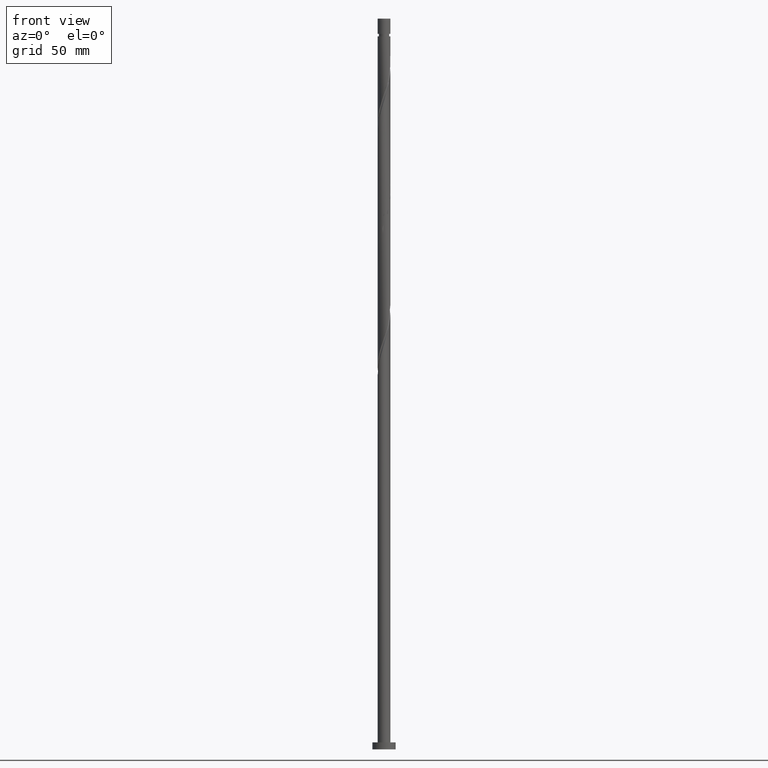
[diagram: clean part render]
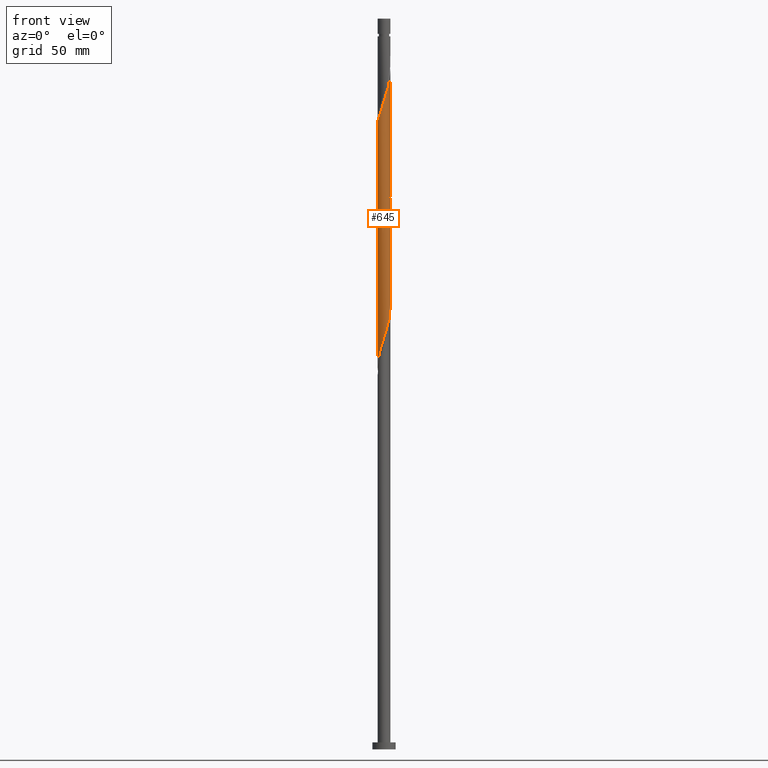
[diagram: same view with one face highlighted and labeled with its STEP entity id]
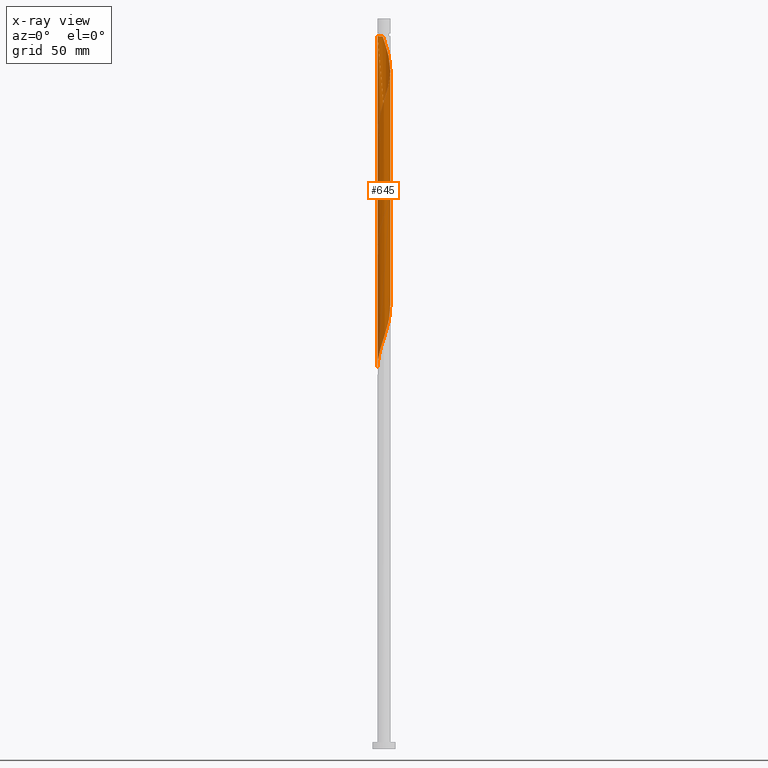
[diagram: x-ray of the same camera — body ghosted, the highlighted face saturated]
A machine part, front view. The second image highlights one B-rep face of the part: STEP entity #645.
The next image is the same camera in x-ray: the body ghosted, the highlighted face saturated — about 0% of this face is hidden behind the body in this view.
In plain terms, the highlighted cylindrical surface (bore or boss wall) has radius 2.75 mm, axis along (-0, -0, -1).
Its self-contained STEP definition (entity closure, byte-faithful):
#2 = CARTESIAN_POINT ( 'NONE',  ( -0.2435895173778452050, -2.756659487836362832, 229.5338897088758472 ) ) ;
#6 = VECTOR ( 'NONE', #1752, 1000.000000000000000 ) ;
#10 = VERTEX_POINT ( 'NONE', #1490 ) ;
#14 = CARTESIAN_POINT ( 'NONE',  ( 0.8508966634394434791, -2.633340512163637737, 282.0338897088757903 ) ) ;
#21 = CARTESIAN_POINT ( 'NONE',  ( 2.749203766908884905, 0.06617135342423841049, 243.5963897088758756 ) ) ;
#26 = CARTESIAN_POINT ( 'NONE',  ( 0.9766031543515202307, -2.589353908558131412, 180.7838897088758756 ) ) ;
#27 = CARTESIAN_POINT ( 'NONE',  ( 2.665550977269772748, -0.6762676892889233349, 290.4713897088759040 ) ) ;
#41 = CARTESIAN_POINT ( 'NONE',  ( 1.528303124377901723, 2.307118753959442436, 300.7838897088757335 ) ) ;
#59 = ORIENTED_EDGE ( 'NONE', *, *, #955, .F. ) ;
#66 = VERTEX_POINT ( 'NONE', #630 ) ;
#69 = CARTESIAN_POINT ( 'NONE',  ( -2.003367594109886074, 1.909195031348284610, 210.7838897088758188 ) ) ;
#79 = CARTESIAN_POINT ( 'NONE',  ( -1.252453139364709367, 2.448236331258784926, 260.4713897088758472 ) ) ;
#85 = CARTESIAN_POINT ( 'NONE',  ( 2.749999999999999112, -0.2763853991962866852, 242.5576357078182639 ) ) ;
#94 = CARTESIAN_POINT ( 'NONE',  ( 1.909195031348285054, 2.003367594109886074, 197.6588897088758756 ) ) ;
#103 = CARTESIAN_POINT ( 'NONE',  ( -2.448236331258784926, -1.252453139364709367, 168.5963897088758472 ) ) ;
#116 = CARTESIAN_POINT ( 'NONE',  ( 1.662365664554716016, 2.190671220724266899, 251.0963897088757903 ) ) ;
#120 = CARTESIAN_POINT ( 'NONE',  ( -2.108156892653862080, -1.765835359243892455, 170.4713897088758472 ) ) ;
#125 = VECTOR ( 'NONE', #169, 1000.000000000000000 ) ;
#150 = CARTESIAN_POINT ( 'NONE',  ( -2.505657679751145839, -1.133216480600296228, 269.8463897088759040 ) ) ;
#159 = CARTESIAN_POINT ( 'NONE',  ( 2.505657679751146727, 1.133216480600296228, 296.0963897088759040 ) ) ;
#168 = CARTESIAN_POINT ( 'NONE',  ( 0.6762676892889234459, 2.665550977269772748, 303.5963897088757903 ) ) ;
#169 = DIRECTION ( 'NONE',  ( -0.000000000000000000, -0.000000000000000000, -1.000000000000000000 ) ) ;
#171 = CARTESIAN_POINT ( 'NONE',  ( -1.765835359243892677, 2.108156892653862080, 209.8463897088758472 ) ) ;
#174 = CARTESIAN_POINT ( 'NONE',  ( 0.000000000000000000, 0.000000000000000000, 307.3463897088758472 ) ) ;
#175 = CARTESIAN_POINT ( 'NONE',  ( -2.448236331258784926, -1.252453139364709367, 221.0963897088758756 ) ) ;
#178 = CARTESIAN_POINT ( 'NONE',  ( -2.695000000000002505, -0.5472430904086440506, 267.9713897088759040 ) ) ;
#184 = CARTESIAN_POINT ( 'NONE',  ( -2.589353908558131412, -0.9766031543515202307, 220.1588897088758472 ) ) ;
#190 = CARTESIAN_POINT ( 'NONE',  ( 2.633340512163637737, 0.8508966634394432571, 295.1588897088757903 ) ) ;
#224 =( BOUNDED_CURVE ( )  B_SPLINE_CURVE ( 2, ( #772, #1727, #1042, #1599, #358, #916, #1456, #1316, #1739, #1610, #79, #389, #232, #668, #1180, #1486, #801, #1213, #1361, #1221, #116, #676, #1787, #553, #591, #685, #1690, #1133, #21, #284, #1111 ),
 .UNSPECIFIED., .F., .T. ) 
 B_SPLINE_CURVE_WITH_KNOTS ( ( 3, 2, 2, 2, 2, 2, 2, 2, 2, 2, 2, 2, 2, 2, 2, 3 ),
 ( 0.4295303401299220836, 0.4375000000000000000, 0.4464285714285714524, 0.4553571428571428492, 0.4642857142857143016, 0.4732142857142856984, 0.4821428571428571508, 0.4910714285714285476, 0.5000000000000000000, 0.5089285714285713969, 0.5178571428571429047, 0.5267857142857143016, 0.5357142857142856984, 0.5446428571428570953, 0.5535714285714286031, 0.5545303401299220836 ),
 .UNSPECIFIED. ) 
 CURVE ( )  GEOMETRIC_REPRESENTATION_ITEM ( )  RATIONAL_B_SPLINE_CURVE ( ( 0.9079949616362151810, 0.9039886423360783407, 0.9090909090909452539, 0.9033747362666200154, 0.9090909090909452539, 0.9033747362666200154, 0.9090909090909452539, 0.9033747362666200154, 0.9090909090909452539, 0.9033747362666200154, 0.9090909090909452539, 0.9033747362666200154, 0.9090909090909452539, 0.9033747362666200154, 0.9090909090909452539, 0.9033747362666200154, 0.9090909090909452539, 0.9033747362666200154, 0.9090909090909452539, 0.9033747362666200154, 0.9090909090909452539, 0.9033747362666200154, 0.9090909090909452539, 0.9033747362666200154, 0.9090909090909452539, 0.9033747362666200154, 0.9090909090909452539, 0.9033747362666200154, 0.9090909090909452539, 0.9084770030214870395, 0.9079949616362152920 ) ) 
 REPRESENTATION_ITEM ( '' )  );
#232 = CARTESIAN_POINT ( 'NONE',  ( -0.6762676892889212255, 2.665550977269768751, 258.5963897088758472 ) ) ;
#264 = CARTESIAN_POINT ( 'NONE',  ( -2.749203766908884905, -0.06617135342423872968, 164.8463897088758472 ) ) ;
#280 = CARTESIAN_POINT ( 'NONE',  ( 0.9766031543515202307, -2.589353908558131412, 233.2838897088759325 ) ) ;
#284 = CARTESIAN_POINT ( 'NONE',  ( 2.749999999999999556, 0.03309046720757050086, 243.4962694750069545 ) ) ;
#289 = CARTESIAN_POINT ( 'NONE',  ( -0.5472430904086440506, -2.694999999999998952, 176.0963897088758472 ) ) ;
#297 = CARTESIAN_POINT ( 'NONE',  ( -2.749999999999999556, -1.291079409611995584E-15, 269.6459067867819499 ) ) ;
#323 = CARTESIAN_POINT ( 'NONE',  ( 1.415536297761148310, -2.377974847338651720, 283.9088897088758472 ) ) ;
#324 = ORIENTED_EDGE ( 'NONE', *, *, #554, .F. ) ;
#331 = CARTESIAN_POINT ( 'NONE',  ( 0.2435895173778448719, 2.756659487836362832, 203.2838897088758756 ) ) ;
#349 = DIRECTION ( 'NONE',  ( -0.000000000000000000, -0.000000000000000000, -1.000000000000000000 ) ) ;
#351 = CARTESIAN_POINT ( 'NONE',  ( -1.662365664554715794, -2.190671220724267343, 224.8463897088758188 ) ) ;
#358 = CARTESIAN_POINT ( 'NONE',  ( -2.505657679751142286, 1.133216480600295117, 266.0963897088758472 ) ) ;
#359 = EDGE_CURVE ( 'NONE', #425, #766, #1657, .T. ) ;
#389 = CARTESIAN_POINT ( 'NONE',  ( -0.9766031543515204527, 2.589353908558131412, 259.5338897088759040 ) ) ;
#398 = CARTESIAN_POINT ( 'NONE',  ( 2.665550977269769195, 0.6762676892889208924, 192.9713897088758188 ) ) ;
#421 = CARTESIAN_POINT ( 'NONE',  ( 2.749999999999999556, -3.272475844594567538E-15, 243.3959067867819215 ) ) ;
#425 = VERTEX_POINT ( 'NONE', #421 ) ;
#426 = CARTESIAN_POINT ( 'NONE',  ( 1.252453139364709145, -2.448236331258784926, 181.7213897088758756 ) ) ;
#449 = CARTESIAN_POINT ( 'NONE',  ( 2.190671220724272672, 1.662365664554717792, 297.9713897088759040 ) ) ;
#456 = CARTESIAN_POINT ( 'NONE',  ( -2.003367594109888739, -1.909195031348285720, 272.6588897088757335 ) ) ;
#468 = CARTESIAN_POINT ( 'NONE',  ( -2.633340512163637737, -0.8508966634394435902, 268.9088897088757335 ) ) ;
#485 = CARTESIAN_POINT ( 'NONE',  ( -2.633340512163635072, 0.8508966634394432571, 214.5338897088758756 ) ) ;
#493 = LINE ( 'NONE', #1038, #1644 ) ;
#500 = EDGE_CURVE ( 'NONE', #10, #1776, #927, .T. ) ;
#518 = CARTESIAN_POINT ( 'NONE',  ( -2.741748045981406090, -0.3759322242263221647, 165.7838897088758756 ) ) ;
#520 = VERTEX_POINT ( 'NONE', #297 ) ;
#532 = CARTESIAN_POINT ( 'NONE',  ( 2.377974847338649500, -1.415536297761147866, 186.4088897088759040 ) ) ;
#547 = CARTESIAN_POINT ( 'NONE',  ( 2.003367594109886074, -1.909195031348285054, 184.5338897088758756 ) ) ;
#550 = CARTESIAN_POINT ( 'NONE',  ( 2.749999999999999556, -3.272475844594567538E-15, 243.3959067867819215 ) ) ;
#553 = CARTESIAN_POINT ( 'NONE',  ( 2.307118753959440216, 1.528303124377899502, 248.2838897088758756 ) ) ;
#554 = EDGE_CURVE ( 'NONE', #520, #425, #224, .T. ) ;
#557 = VERTEX_POINT ( 'NONE', #1802 ) ;
#565 = CARTESIAN_POINT ( 'NONE',  ( 2.749203766908884905, 0.06617135342423841049, 191.0963897088757903 ) ) ;
#572 = DIRECTION ( 'NONE',  ( -0.000000000000000000, -0.000000000000000000, -1.000000000000000000 ) ) ;
#591 = CARTESIAN_POINT ( 'NONE',  ( 2.448236331258784926, 1.252453139364709145, 247.3463897088758756 ) ) ;
#593 = CARTESIAN_POINT ( 'NONE',  ( -2.108156892653862080, -1.765835359243892455, 222.9713897088759040 ) ) ;
#595 = CARTESIAN_POINT ( 'NONE',  ( 2.741748045981408310, -0.3759322242263239411, 291.4088897088757903 ) ) ;
#603 = CARTESIAN_POINT ( 'NONE',  ( -2.750000000000003553, 1.899304680614166734E-15, 266.2968726309698013 ) ) ;
#609 = CARTESIAN_POINT ( 'NONE',  ( 2.749203766908889346, -0.06617135342423986766, 292.3463897088759609 ) ) ;
#621 = LINE ( 'NONE', #1570, #125 ) ;
#630 = CARTESIAN_POINT ( 'NONE',  ( 2.750000000000000000, 3.367778697655221012E-16, 307.3463897088759609 ) ) ;
#645 = ADVANCED_FACE ( 'NONE', ( #1242 ), #1414, .T. ) ;
#646 = CARTESIAN_POINT ( 'NONE',  ( -2.749999999999999556, -0.03309046720757082005, 164.7462694750070114 ) ) ;
#668 = CARTESIAN_POINT ( 'NONE',  ( -0.3759322242263226088, 2.741748045981406090, 257.6588897088759040 ) ) ;
#671 = CARTESIAN_POINT ( 'NONE',  ( 2.505657679751142286, -1.133216480600295784, 187.3463897088758472 ) ) ;
#676 = CARTESIAN_POINT ( 'NONE',  ( 1.909195031348285054, 2.003367594109886074, 250.1588897088759040 ) ) ;
#678 = CARTESIAN_POINT ( 'NONE',  ( -2.665550977269768751, -0.6762676892889212255, 166.7213897088758188 ) ) ;
#685 = CARTESIAN_POINT ( 'NONE',  ( 2.589353908558130524, 0.9766031543515200086, 246.4088897088758756 ) ) ;
#704 = CARTESIAN_POINT ( 'NONE',  ( -0.5472430904087335346, 2.695000000000897344, 307.3463897088759609 ) ) ;
#705 = CARTESIAN_POINT ( 'NONE',  ( 0.3759322242263221092, -2.741748045981406090, 231.4088897088758756 ) ) ;
#712 = CARTESIAN_POINT ( 'NONE',  ( -1.415536297761148088, -2.377974847338649944, 173.2838897088758756 ) ) ;
#714 = CARTESIAN_POINT ( 'NONE',  ( 2.377974847338651720, 1.415536297761147866, 297.0338897088756767 ) ) ;
#726 = CARTESIAN_POINT ( 'NONE',  ( -1.765835359243896674, -2.108156892653864745, 273.5963897088758472 ) ) ;
#732 = CARTESIAN_POINT ( 'NONE',  ( 1.662365664554717792, -2.190671220724271784, 284.8463897088759040 ) ) ;
#738 = CARTESIAN_POINT ( 'NONE',  ( -2.665550977269768751, -0.6762676892889212255, 219.2213897088759040 ) ) ;
#739 = EDGE_LOOP ( 'NONE', ( #59, #846, #1245, #1496, #973, #1126, #1381, #324 ) ) ;
#740 = CARTESIAN_POINT ( 'NONE',  ( 2.003367594109889183, 1.909195031348285498, 298.9088897088756767 ) ) ;
#755 = CARTESIAN_POINT ( 'NONE',  ( -0.3759322242263226088, 2.741748045981406090, 205.1588897088758472 ) ) ;
#761 = CARTESIAN_POINT ( 'NONE',  ( -1.415536297761148088, -2.377974847338649944, 225.7838897088758756 ) ) ;
#766 = VERTEX_POINT ( 'NONE', #1433 ) ;
#772 = CARTESIAN_POINT ( 'NONE',  ( -2.750000000000000000, -1.291079409611995584E-15, 269.6459067867819499 ) ) ;
#790 = LINE ( 'NONE', #1186, #6 ) ;
#799 = CARTESIAN_POINT ( 'NONE',  ( 2.633340512163634628, -0.8508966634394437012, 240.7838897088759040 ) ) ;
#801 = CARTESIAN_POINT ( 'NONE',  ( 0.5472430904086444947, 2.694999999999998952, 254.8463897088758472 ) ) ;
#821 = CARTESIAN_POINT ( 'NONE',  ( -2.307118753959439772, -1.528303124377899946, 169.5338897088758756 ) ) ;
#836 = CARTESIAN_POINT ( 'NONE',  ( 1.662365664554716016, 2.190671220724266899, 198.5963897088758472 ) ) ;
#839 = EDGE_CURVE ( 'NONE', #66, #425, #790, .T. ) ;
#846 = ORIENTED_EDGE ( 'NONE', *, *, #500, .T. ) ;
#848 = CARTESIAN_POINT ( 'NONE',  ( -0.2435895173778441503, 2.756659487836366829, 306.4088897088757903 ) ) ;
#853 = DIRECTION ( 'NONE',  ( -0.000000000000000000, -0.000000000000000000, -1.000000000000000000 ) ) ;
#858 = CARTESIAN_POINT ( 'NONE',  ( -0.8508966634394435902, -2.633340512163635072, 175.1588897088759040 ) ) ;
#861 = CARTESIAN_POINT ( 'NONE',  ( 1.133216480600296228, -2.505657679751146727, 282.9713897088757903 ) ) ;
#880 = CARTESIAN_POINT ( 'NONE',  ( -1.909195031348285054, -2.003367594109886074, 171.4088897088758756 ) ) ;
#888 = CARTESIAN_POINT ( 'NONE',  ( 2.307118753959442436, -1.528303124377901723, 287.6588897088757335 ) ) ;
#892 = CARTESIAN_POINT ( 'NONE',  ( -1.252453139364709367, 2.448236331258784926, 207.9713897088758756 ) ) ;
#898 = CARTESIAN_POINT ( 'NONE',  ( -0.9766031543515204527, 2.589353908558131412, 207.0338897088758756 ) ) ;
#916 = CARTESIAN_POINT ( 'NONE',  ( -2.377974847338649944, 1.415536297761147866, 265.1588897088758472 ) ) ;
#917 = CARTESIAN_POINT ( 'NONE',  ( -2.377974847338649944, 1.415536297761147866, 212.6588897088759040 ) ) ;
#927 = CIRCLE ( 'NONE', #1220, 2.749999999999974687 ) ;
#945 = CARTESIAN_POINT ( 'NONE',  ( 2.448236331258784926, 1.252453139364709145, 194.8463897088758188 ) ) ;
#955 = EDGE_CURVE ( 'NONE', #10, #520, #493, .T. ) ;
#959 = CARTESIAN_POINT ( 'NONE',  ( 2.694999999999998952, -0.5472430904086443837, 189.2213897088758472 ) ) ;
#968 = CARTESIAN_POINT ( 'NONE',  ( -0.5472430904086440506, -2.694999999999998952, 228.5963897088758472 ) ) ;
#973 = ORIENTED_EDGE ( 'NONE', *, *, #359, .F. ) ;
#974 = CARTESIAN_POINT ( 'NONE',  ( 2.741748045981406090, 0.3759322242263219427, 192.0338897088758756 ) ) ;
#979 = CARTESIAN_POINT ( 'NONE',  ( 0.000000000000000000, 0.000000000000000000, 315.0000000000000000 ) ) ;
#996 = CARTESIAN_POINT ( 'NONE',  ( -1.528303124377901501, -2.307118753959442436, 274.5338897088757903 ) ) ;
#997 = CARTESIAN_POINT ( 'NONE',  ( -0.8508966634394435902, -2.633340512163635072, 227.6588897088759325 ) ) ;
#1004 = CARTESIAN_POINT ( 'NONE',  ( -2.190671220724271784, -1.662365664554717792, 271.7213897088759040 ) ) ;
#1011 = CARTESIAN_POINT ( 'NONE',  ( -0.6762676892889233349, -2.665550977269772748, 277.3463897088758472 ) ) ;
#1018 = CARTESIAN_POINT ( 'NONE',  ( -0.9766031543515221180, -2.589353908558133188, 276.4088897088756767 ) ) ;
#1020 = CARTESIAN_POINT ( 'NONE',  ( -1.528303124377899946, 2.307118753959439772, 208.9088897088758472 ) ) ;
#1025 = CARTESIAN_POINT ( 'NONE',  ( -2.377974847338651720, -1.415536297761148310, 270.7838897088757335 ) ) ;
#1038 = CARTESIAN_POINT ( 'NONE',  ( -2.750000000000000000, 0.000000000000000000, 315.0000000000000000 ) ) ;
#1042 = CARTESIAN_POINT ( 'NONE',  ( -2.694999999999998952, 0.5472430904086440506, 267.9713897088757903 ) ) ;
#1045 = CARTESIAN_POINT ( 'NONE',  ( -0.06617135342423884070, 2.749203766908884905, 204.2213897088758472 ) ) ;
#1099 = CARTESIAN_POINT ( 'NONE',  ( 2.003367594109886074, -1.909195031348285054, 237.0338897088758756 ) ) ;
#1108 = CARTESIAN_POINT ( 'NONE',  ( 2.505657679751142286, -1.133216480600295784, 239.8463897088758188 ) ) ;
#1111 = CARTESIAN_POINT ( 'NONE',  ( 2.749999999999999556, -3.272475844594567538E-15, 243.3959067867819215 ) ) ;
#1114 = CARTESIAN_POINT ( 'NONE',  ( 0.3759322242263221092, -2.741748045981406090, 178.9088897088758756 ) ) ;
#1116 = CARTESIAN_POINT ( 'NONE',  ( -0.3759322242263236635, -2.741748045981409643, 278.2838897088757335 ) ) ;
#1125 = CARTESIAN_POINT ( 'NONE',  ( -2.750000000000005329, -0.2763853991962709200, 267.1351437099332884 ) ) ;
#1126 = ORIENTED_EDGE ( 'NONE', *, *, #839, .F. ) ;
#1132 = EDGE_CURVE ( 'NONE', #557, #766, #621, .T. ) ;
#1133 = CARTESIAN_POINT ( 'NONE',  ( 2.741748045981406090, 0.3759322242263219427, 244.5338897088758756 ) ) ;
#1135 = CARTESIAN_POINT ( 'NONE',  ( -2.307118753959439772, -1.528303124377899946, 222.0338897088758756 ) ) ;
#1136 = CARTESIAN_POINT ( 'NONE',  ( 0.6762676892889211144, -2.665550977269768751, 179.8463897088758472 ) ) ;
#1138 = CARTESIAN_POINT ( 'NONE',  ( -1.252453139364712476, -2.448236331258788034, 275.4713897088759040 ) ) ;
#1152 = CARTESIAN_POINT ( 'NONE',  ( 1.909195031348285720, -2.003367594109888739, 285.7838897088758472 ) ) ;
#1166 = CARTESIAN_POINT ( 'NONE',  ( -2.741748045981406090, -0.3759322242263221647, 218.2838897088758756 ) ) ;
#1180 = CARTESIAN_POINT ( 'NONE',  ( -0.06617135342423884070, 2.749203766908884905, 256.7213897088758472 ) ) ;
#1185 = CARTESIAN_POINT ( 'NONE',  ( -2.749999999999999556, 2.951571713881759338E-15, 164.6459067867818931 ) ) ;
#1186 = CARTESIAN_POINT ( 'NONE',  ( 2.750000000000000000, 3.367778697655221012E-16, 315.0000000000000000 ) ) ;
#1213 = CARTESIAN_POINT ( 'NONE',  ( 0.8508966634394437012, 2.633340512163634628, 253.9088897088758188 ) ) ;
#1220 = AXIS2_PLACEMENT_3D ( 'NONE', #174, #572, #1683 ) ;
#1221 = CARTESIAN_POINT ( 'NONE',  ( 1.415536297761148532, 2.377974847338649500, 252.0338897088759040 ) ) ;
#1226 = CARTESIAN_POINT ( 'NONE',  ( 2.307118753959440216, 1.528303124377899502, 195.7838897088758756 ) ) ;
#1237 = CARTESIAN_POINT ( 'NONE',  ( 2.589353908558130524, 0.9766031543515200086, 193.9088897088758756 ) ) ;
#1242 = FACE_OUTER_BOUND ( 'NONE', #739, .T. ) ;
#1245 = ORIENTED_EDGE ( 'NONE', *, *, #1742, .F. ) ;
#1247 = CARTESIAN_POINT ( 'NONE',  ( -0.5472430904087335346, 2.695000000000897344, 307.3463897088759609 ) ) ;
#1257 = CARTESIAN_POINT ( 'NONE',  ( -1.662365664554715794, -2.190671220724267343, 172.3463897088758756 ) ) ;
#1260 = CARTESIAN_POINT ( 'NONE',  ( 0.9766031543515225621, 2.589353908558133188, 302.6588897088758472 ) ) ;
#1267 = CARTESIAN_POINT ( 'NONE',  ( -1.909195031348285054, -2.003367594109886074, 223.9088897088758756 ) ) ;
#1270 = CARTESIAN_POINT ( 'NONE',  ( 2.108156892653864745, -1.765835359243896674, 286.7213897088759609 ) ) ;
#1278 = CARTESIAN_POINT ( 'NONE',  ( 2.695000000000002505, 0.5472430904086440506, 294.2213897088759609 ) ) ;
#1289 = CARTESIAN_POINT ( 'NONE',  ( 1.765835359243896674, 2.108156892653864745, 299.8463897088759040 ) ) ;
#1316 = CARTESIAN_POINT ( 'NONE',  ( -2.003367594109886074, 1.909195031348284610, 263.2838897088759040 ) ) ;
#1317 = CARTESIAN_POINT ( 'NONE',  ( -2.190671220724267787, 1.662365664554715794, 211.7213897088758188 ) ) ;
#1339 = CARTESIAN_POINT ( 'NONE',  ( 2.756659487836362832, -0.2435895173778453715, 190.1588897088759040 ) ) ;
#1361 = CARTESIAN_POINT ( 'NONE',  ( 1.133216480600295784, 2.505657679751142286, 252.9713897088758472 ) ) ;
#1381 = ORIENTED_EDGE ( 'NONE', *, *, #839, .T. ) ;
#1383 = CARTESIAN_POINT ( 'NONE',  ( 1.528303124377899946, -2.307118753959440216, 182.6588897088758188 ) ) ;
#1385 = CARTESIAN_POINT ( 'NONE',  ( 0.3759322242263239966, 2.741748045981408310, 304.5338897088758472 ) ) ;
#1386 = CARTESIAN_POINT ( 'NONE',  ( 0.6762676892889211144, -2.665550977269768751, 232.3463897088758472 ) ) ;
#1395 = CARTESIAN_POINT ( 'NONE',  ( -1.133216480600295339, -2.505657679751142286, 174.2213897088758756 ) ) ;
#1397 = CARTESIAN_POINT ( 'NONE',  ( 2.756659487836366829, 0.2435895173778442335, 293.2838897088757903 ) ) ;
#1399 = CARTESIAN_POINT ( 'NONE',  ( 0.06617135342423850763, -2.749203766908884905, 230.4713897088758472 ) ) ;
#1408 = CARTESIAN_POINT ( 'NONE',  ( -0.2435895173778452050, -2.756659487836362832, 177.0338897088758472 ) ) ;
#1410 = CARTESIAN_POINT ( 'NONE',  ( 0.5472430904086440506, -2.695000000000002505, 281.0963897088759609 ) ) ;
#1412 = CARTESIAN_POINT ( 'NONE',  ( 1.765835359243892455, -2.108156892653862080, 236.0963897088758756 ) ) ;
#1414 = CYLINDRICAL_SURFACE ( 'NONE', #1702, 2.750000000000000000 ) ;
#1426 = CARTESIAN_POINT ( 'NONE',  ( 1.765835359243892455, -2.108156892653862080, 183.5963897088758472 ) ) ;
#1427 = CARTESIAN_POINT ( 'NONE',  ( 2.448236331258788034, -1.252453139364712920, 288.5963897088758472 ) ) ;
#1433 = CARTESIAN_POINT ( 'NONE',  ( -2.749999999999999556, 2.951571713881759338E-15, 164.6459067867818931 ) ) ;
#1436 = CARTESIAN_POINT ( 'NONE',  ( 0.5472430904086444947, 2.694999999999998952, 202.3463897088758188 ) ) ;
#1456 = CARTESIAN_POINT ( 'NONE',  ( -2.190671220724267787, 1.662365664554715794, 264.2213897088759040 ) ) ;
#1466 = CARTESIAN_POINT ( 'NONE',  ( 2.694999999999998952, -0.5472430904086443837, 241.7213897088758472 ) ) ;
#1470 = CARTESIAN_POINT ( 'NONE',  ( -2.694999999999998952, 0.5472430904086440506, 215.4713897088758472 ) ) ;
#1476 = CARTESIAN_POINT ( 'NONE',  ( 1.133216480600295784, 2.505657679751142286, 200.4713897088758188 ) ) ;
#1486 = CARTESIAN_POINT ( 'NONE',  ( 0.2435895173778448719, 2.756659487836362832, 255.7838897088758756 ) ) ;
#1490 = CARTESIAN_POINT ( 'NONE',  ( -2.749999999999974687, 0.000000000000000000, 307.3463897088758472 ) ) ;
#1496 = ORIENTED_EDGE ( 'NONE', *, *, #1132, .T. ) ;
#1535 =( BOUNDED_CURVE ( )  B_SPLINE_CURVE ( 2, ( #603, #1125, #178, #468, #150, #1025, #1004, #456, #726, #996, #1138, #1018, #1011, #1116, #1537, #1549, #1410, #14, #861, #323, #732, #1152, #1270, #888, #1427, #1687, #27, #595, #609, #1397, #1278, #190, #159, #714, #449, #740, #1289, #41, #1712, #1260, #168, #1385, #1575, #848, #704 ),
 .UNSPECIFIED., .F., .T. ) 
 B_SPLINE_CURVE_WITH_KNOTS ( ( 3, 2, 2, 2, 2, 2, 2, 2, 2, 2, 2, 2, 2, 2, 2, 2, 2, 2, 2, 2, 2, 2, 3 ),
 ( 0.5545303401299216395, 0.5625000000000000000, 0.5714285714285713969, 0.5803571428571427937, 0.5892857142857143016, 0.5982142857142856984, 0.6071428571428572063, 0.6160714285714286031, 0.6250000000000000000, 0.6339285714285713969, 0.6428571428571427937, 0.6517857142857143016, 0.6607142857142856984, 0.6696428571428572063, 0.6785714285714286031, 0.6875000000000000000, 0.6964285714285713969, 0.7053571428571427937, 0.7142857142857143016, 0.7232142857142856984, 0.7321428571428572063, 0.7410714285714286031, 0.7500000000000000000 ),
 .UNSPECIFIED. ) 
 CURVE ( )  GEOMETRIC_REPRESENTATION_ITEM ( )  RATIONAL_B_SPLINE_CURVE ( ( 0.9079949616362215092, 0.9039886423360840029, 0.9090909090909509160, 0.9033747362666260106, 0.9090909090909509160, 0.9033747362666260106, 0.9090909090909509160, 0.9033747362666260106, 0.9090909090909509160, 0.9033747362666260106, 0.9090909090909509160, 0.9033747362666260106, 0.9090909090909509160, 0.9033747362666260106, 0.9090909090909509160, 0.9033747362666260106, 0.9090909090909509160, 0.9033747362666260106, 0.9090909090909509160, 0.9033747362666260106, 0.9090909090909509160, 0.9033747362666260106, 0.9090909090909509160, 0.9033747362666260106, 0.9090909090909509160, 0.9033747362666260106, 0.9090909090909509160, 0.9033747362666260106, 0.9090909090909509160, 0.9033747362666260106, 0.9090909090909509160, 0.9033747362666260106, 0.9090909090909509160, 0.9033747362666260106, 0.9090909090909509160, 0.9033747362666260106, 0.9090909090909509160, 0.9033747362666260106, 0.9090909090909509160, 0.9033747362666260106, 0.9090909090909509160, 0.9033747362666260106, 0.9090909090909509160, 0.9033747362666260106, 0.9090909090909509160 ) ) 
 REPRESENTATION_ITEM ( '' )  );
#1537 = CARTESIAN_POINT ( 'NONE',  ( -0.06617135342423963174, -2.749203766908889346, 279.2213897088758472 ) ) ;
#1542 = DIRECTION ( 'NONE',  ( -1.000000000000000000, 0.000000000000000000, 0.000000000000000000 ) ) ;
#1549 = CARTESIAN_POINT ( 'NONE',  ( 0.2435895173778444001, -2.756659487836365940, 280.1588897088757903 ) ) ;
#1570 = CARTESIAN_POINT ( 'NONE',  ( -2.750000000000000000, 0.000000000000000000, 315.0000000000000000 ) ) ;
#1575 = CARTESIAN_POINT ( 'NONE',  ( 0.06617135342423995092, 2.749203766908889346, 305.4713897088760177 ) ) ;
#1578 = CARTESIAN_POINT ( 'NONE',  ( -0.6762676892889212255, 2.665550977269768751, 206.0963897088758188 ) ) ;
#1580 = CARTESIAN_POINT ( 'NONE',  ( -2.505657679751142286, 1.133216480600295117, 213.5963897088758472 ) ) ;
#1585 = CARTESIAN_POINT ( 'NONE',  ( -1.133216480600295339, -2.505657679751142286, 226.7213897088758472 ) ) ;
#1599 = CARTESIAN_POINT ( 'NONE',  ( -2.633340512163635072, 0.8508966634394432571, 267.0338897088759040 ) ) ;
#1600 = CARTESIAN_POINT ( 'NONE',  ( -2.749203766908884905, -0.06617135342423872968, 217.3463897088758188 ) ) ;
#1610 = CARTESIAN_POINT ( 'NONE',  ( -1.528303124377899946, 2.307118753959439772, 261.4088897088759040 ) ) ;
#1644 = VECTOR ( 'NONE', #349, 1000.000000000000000 ) ;
#1657 =( BOUNDED_CURVE ( )  B_SPLINE_CURVE ( 2, ( #550, #85, #1466, #799, #1108, #1678, #1792, #1099, #1412, #1695, #1661, #280, #1386, #705, #1399, #2, #968, #997, #1585, #761, #351, #1267, #593, #1135, #175, #184, #738, #1166, #1600, #1728, #1470, #485, #1580, #917, #1317, #69, #171, #1020, #892, #898, #1578, #755, #1045, #331, #1436, #1744, #1476, #1755, #836, #94, #1777, #1226, #945, #1237, #398, #974, #565, #1339, #959, #1768, #671, #532, #1659, #547, #1426, #1383, #426, #26, #1136, #1114, #1675, #1408, #289, #858, #1395, #712, #1257, #880, #120, #821, #103, #1765, #678, #518, #264, #646, #1185 ),
 .UNSPECIFIED., .F., .T. ) 
 B_SPLINE_CURVE_WITH_KNOTS ( ( 3, 2, 2, 2, 2, 2, 2, 2, 2, 2, 2, 2, 2, 2, 2, 2, 2, 2, 2, 2, 2, 2, 2, 2, 2, 2, 2, 2, 2, 2, 2, 2, 2, 2, 2, 2, 2, 2, 2, 2, 2, 2, 2, 3 ),
 ( 0.5545303401299220836, 0.5625000000000000000, 0.5714285714285713969, 0.5803571428571429047, 0.5892857142857143016, 0.5982142857142856984, 0.6071428571428570953, 0.6160714285714286031, 0.6250000000000000000, 0.6339285714285713969, 0.6428571428571429047, 0.6517857142857143016, 0.6607142857142856984, 0.6696428571428570953, 0.6785714285714286031, 0.6875000000000000000, 0.6964285714285713969, 0.7053571428571429047, 0.7142857142857143016, 0.7232142857142856984, 0.7321428571428570953, 0.7410714285714286031, 0.7500000000000000000, 0.7589285714285713969, 0.7678571428571429047, 0.7767857142857143016, 0.7857142857142856984, 0.7946428571428570953, 0.8035714285714286031, 0.8125000000000000000, 0.8214285714285713969, 0.8303571428571429047, 0.8392857142857143016, 0.8482142857142856984, 0.8571428571428570953, 0.8660714285714286031, 0.8750000000000000000, 0.8839285714285713969, 0.8928571428571429047, 0.9017857142857143016, 0.9107142857142856984, 0.9196428571428570953, 0.9285714285714286031, 0.9295303401299220836 ),
 .UNSPECIFIED. ) 
 CURVE ( )  GEOMETRIC_REPRESENTATION_ITEM ( )  RATIONAL_B_SPLINE_CURVE ( ( 0.9079949616362152920, 0.9039886423360783407, 0.9090909090909452539, 0.9033747362666200154, 0.9090909090909452539, 0.9033747362666200154, 0.9090909090909452539, 0.9033747362666200154, 0.9090909090909452539, 0.9033747362666200154, 0.9090909090909452539, 0.9033747362666200154, 0.9090909090909452539, 0.9033747362666200154, 0.9090909090909452539, 0.9033747362666200154, 0.9090909090909452539, 0.9033747362666200154, 0.9090909090909452539, 0.9033747362666200154, 0.9090909090909452539, 0.9033747362666200154, 0.9090909090909452539, 0.9033747362666200154, 0.9090909090909452539, 0.9033747362666200154, 0.9090909090909452539, 0.9033747362666200154, 0.9090909090909452539, 0.9033747362666200154, 0.9090909090909452539, 0.9033747362666200154, 0.9090909090909452539, 0.9033747362666200154, 0.9090909090909452539, 0.9033747362666200154, 0.9090909090909452539, 0.9033747362666200154, 0.9090909090909452539, 0.9033747362666200154, 0.9090909090909452539, 0.9033747362666200154, 0.9090909090909452539, 0.9033747362666200154, 0.9090909090909452539, 0.9033747362666200154, 0.9090909090909452539, 0.9033747362666200154, 0.9090909090909452539, 0.9033747362666200154, 0.9090909090909452539, 0.9033747362666200154, 0.9090909090909452539, 0.9033747362666200154, 0.9090909090909452539, 0.9033747362666200154, 0.9090909090909452539, 0.9033747362666200154, 0.9090909090909452539, 0.9033747362666200154, 0.9090909090909452539, 0.9033747362666200154, 0.9090909090909452539, 0.9033747362666200154, 0.9090909090909452539, 0.9033747362666200154, 0.9090909090909452539, 0.9033747362666200154, 0.9090909090909452539, 0.9033747362666200154, 0.9090909090909452539, 0.9033747362666200154, 0.9090909090909452539, 0.9033747362666200154, 0.9090909090909452539, 0.9033747362666200154, 0.9090909090909452539, 0.9033747362666200154, 0.9090909090909452539, 0.9033747362666200154, 0.9090909090909452539, 0.9033747362666200154, 0.9090909090909452539, 0.9033747362666200154, 0.9090909090909452539, 0.9084770030214870395, 0.9079949616362152920 ) ) 
 REPRESENTATION_ITEM ( '' )  );
#1659 = CARTESIAN_POINT ( 'NONE',  ( 2.190671220724266899, -1.662365664554716016, 185.4713897088758472 ) ) ;
#1661 = CARTESIAN_POINT ( 'NONE',  ( 1.252453139364709145, -2.448236331258784926, 234.2213897088758756 ) ) ;
#1675 = CARTESIAN_POINT ( 'NONE',  ( 0.06617135342423850763, -2.749203766908884905, 177.9713897088758188 ) ) ;
#1678 = CARTESIAN_POINT ( 'NONE',  ( 2.377974847338649500, -1.415536297761147866, 238.9088897088759040 ) ) ;
#1683 = DIRECTION ( 'NONE',  ( -1.000000000000000000, 0.000000000000000000, 0.000000000000000000 ) ) ;
#1687 = CARTESIAN_POINT ( 'NONE',  ( 2.589353908558133188, -0.9766031543515221180, 289.5338897088757335 ) ) ;
#1690 = CARTESIAN_POINT ( 'NONE',  ( 2.665550977269769195, 0.6762676892889208924, 245.4713897088758472 ) ) ;
#1695 = CARTESIAN_POINT ( 'NONE',  ( 1.528303124377899946, -2.307118753959440216, 235.1588897088758472 ) ) ;
#1702 = AXIS2_PLACEMENT_3D ( 'NONE', #979, #853, #1542 ) ;
#1712 = CARTESIAN_POINT ( 'NONE',  ( 1.252453139364712920, 2.448236331258788034, 301.7213897088758472 ) ) ;
#1727 = CARTESIAN_POINT ( 'NONE',  ( -2.749999999999998668, 0.2763853991962881285, 268.8076357078182923 ) ) ;
#1728 = CARTESIAN_POINT ( 'NONE',  ( -2.756659487836362832, 0.2435895173778449829, 216.4088897088758756 ) ) ;
#1739 = CARTESIAN_POINT ( 'NONE',  ( -1.765835359243892677, 2.108156892653862080, 262.3463897088758472 ) ) ;
#1742 = EDGE_CURVE ( 'NONE', #557, #1776, #1535, .T. ) ;
#1744 = CARTESIAN_POINT ( 'NONE',  ( 0.8508966634394437012, 2.633340512163634628, 201.4088897088758472 ) ) ;
#1752 = DIRECTION ( 'NONE',  ( -0.000000000000000000, -0.000000000000000000, -1.000000000000000000 ) ) ;
#1755 = CARTESIAN_POINT ( 'NONE',  ( 1.415536297761148532, 2.377974847338649500, 199.5338897088759040 ) ) ;
#1765 = CARTESIAN_POINT ( 'NONE',  ( -2.589353908558131412, -0.9766031543515202307, 167.6588897088758472 ) ) ;
#1768 = CARTESIAN_POINT ( 'NONE',  ( 2.633340512163634628, -0.8508966634394437012, 188.2838897088758472 ) ) ;
#1776 = VERTEX_POINT ( 'NONE', #1247 ) ;
#1777 = CARTESIAN_POINT ( 'NONE',  ( 2.108156892653862080, 1.765835359243892455, 196.7213897088758756 ) ) ;
#1787 = CARTESIAN_POINT ( 'NONE',  ( 2.108156892653862080, 1.765835359243892455, 249.2213897088758188 ) ) ;
#1792 = CARTESIAN_POINT ( 'NONE',  ( 2.190671220724266899, -1.662365664554716016, 237.9713897088758188 ) ) ;
#1802 = CARTESIAN_POINT ( 'NONE',  ( -2.750000000000003553, 1.899304680614166734E-15, 266.2968726309698013 ) ) ;